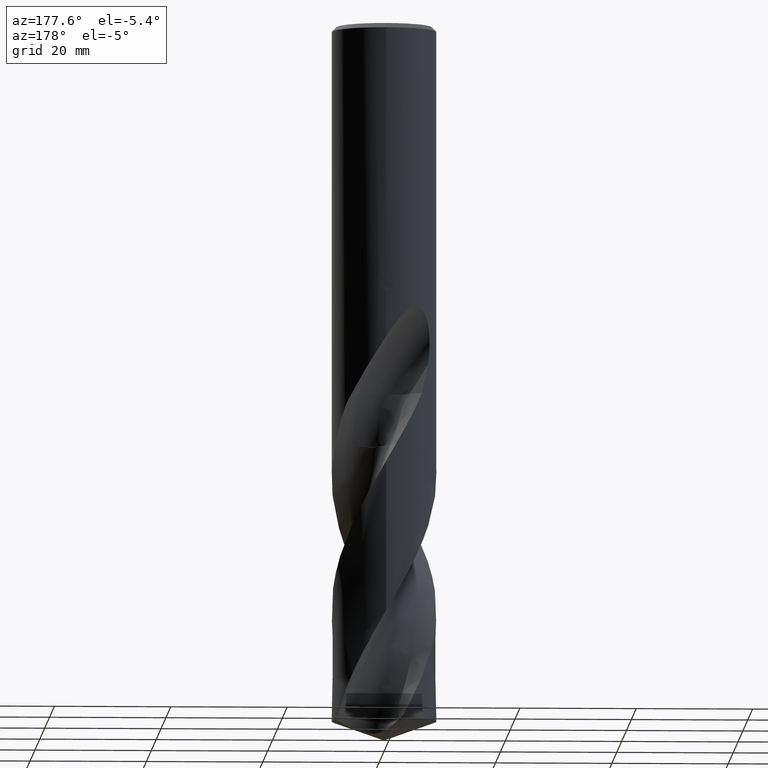
[diagram: clean part render]
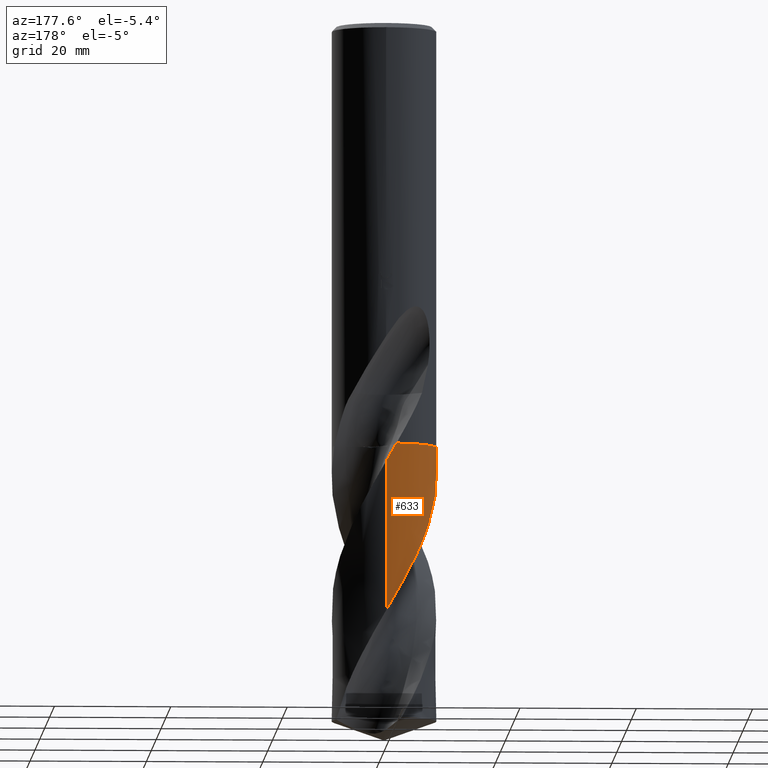
[diagram: same view with one face highlighted and labeled with its STEP entity id]
A machine part, auxiliary view. The second image highlights one B-rep face of the part: STEP entity #633.
In plain terms, the highlighted conical surface has half-angle 0 deg.
Its self-contained STEP definition (entity closure, byte-faithful):
#261=VERTEX_POINT('',#736);
#267=EDGE_CURVE('',#261,#519,#742,.T.);
#367=VERTEX_POINT('',#850);
#393=EDGE_CURVE('',#367,#545,#879,.T.);
#407=VERTEX_POINT('',#895);
#413=VERTEX_POINT('',#901);
#515=EDGE_CURVE('',#413,#367,#1011,.T.);
#519=VERTEX_POINT('',#1015);
#541=EDGE_CURVE('',#519,#413,#1040,.T.);
#545=VERTEX_POINT('',#1044);
#629=EDGE_CURVE('',#407,#261,#1134,.T.);
#633=ADVANCED_FACE('',(#1138),#1139,.T.);
#659=EDGE_CURVE('',#545,#407,#1168,.T.);
#736=CARTESIAN_POINT('',(-1.7776141120921,8.82260099228502,-72.5050000000001));
#742=B_SPLINE_CURVE_WITH_KNOTS('',3,(#1258,#1259,#1260,#1261,#1262,#1263,#1264,#1265,#1266,#1267,#1268,#1269,#1270,#1271,#1272,#1273,#1274,#1275,#1276,#1277,#1278,#1279,#1280,#1281,#1282,#1283,#1284,#1285,#1286,#1287,#1288,#1289,#1290,#1291,#1292,#1293,#1294,#1295,#1296,#1297,#1298,#1299,#1300,#1301,#1302,#1303,#1304,#1305,#1306,#1307,#1308,#1309),.UNSPECIFIED.,.F.,.F.,(4,2,2,2,2,2,2,2,2,2,2,2,2,2,2,2,2,2,2,2,2,2,2,2,2,4),(0.0,1.41544705653889,4.46933983971834,6.13291484086871,7.79328679765323,11.1150139512769,11.3218909070385,14.6362732953079,16.3801027236303,18.1254054756912,21.6227109130525,23.3709591548895,25.1130865872562,26.859027560777,30.3547639594095,31.8683855765479,33.2853282867156,35.9425750654865,38.2700980378896,40.3076010024609,42.090368683687,45.2109040380957,45.7959602723989,47.9907374673563,51.2859009282152,54.579540273064),.UNSPECIFIED.);
#850=CARTESIAN_POINT('',(-8.64142653074174,-2.51474605365439,-72.505));
#879=B_SPLINE_CURVE_WITH_KNOTS('',3,(#3423,#3424,#3425,#3426),.UNSPECIFIED.,.F.,.F.,(4,4),(0.0,0.0191097641142232),.UNSPECIFIED.);
#895=CARTESIAN_POINT('',(-1.78045048752155,8.82202902236692,-72.5));
#901=CARTESIAN_POINT('',(-1.29853358962347E-014,8.99996111550752,-101.36135100112));
#1011=B_SPLINE_CURVE_WITH_KNOTS('',3,(#4970,#4971,#4972,#4973,#4974,#4975,#4976,#4977,#4978,#4979,#4980,#4981,#4982,#4983,#4984,#4985,#4986,#4987,#4988,#4989,#4990,#4991,#4992,#4993,#4994,#4995,#4996,#4997,#4998,#4999,#5000,#5001,#5002,#5003,#5004,#5005,#5006,#5007,#5008,#5009,#5010,#5011,#5012,#5013,#5014,#5015,#5016,#5017,#5018,#5019,#5020,#5021,#5022,#5023,#5024,#5025,#5026,#5027,#5028,#5029,#5030,#5031),.UNSPECIFIED.,.F.,.F.,(4,2,2,2,2,2,2,2,2,2,2,2,2,2,2,2,2,2,2,2,2,2,2,2,2,2,2,2,2,2,4),(0.0,2.53356226960985,3.78901420469953,5.73574751324788,7.88352003773002,8.68770342485946,9.73229587018579,11.8121840639859,15.4667526417185,16.6743231760193,18.5659667039319,21.906437017055,22.0556023164414,24.4340960081216,25.5512084935416,26.9069573839074,28.9338052900889,30.0182710071125,30.9937335319327,34.6005396449741,35.3435565061623,38.8216991774773,39.3125034811369,41.5869746362791,42.7139707860493,44.1922404981507,46.784272524436,48.7252854693923,51.6437122800019,53.100299016907,54.5582214193999),.UNSPECIFIED.);
#1015=CARTESIAN_POINT('',(9.71487914867305E-014,8.99990656492071,-75.6002357198777));
#1040=LINE('',#5134,#5135);
#1044=CARTESIAN_POINT('',(-8.64062220915624,-2.51750826188037,-72.5));
#1134=B_SPLINE_CURVE_WITH_KNOTS('',3,(#5789,#5790,#5791,#5792),.UNSPECIFIED.,.F.,.F.,(4,4),(0.0,0.0146499971479809),.UNSPECIFIED.);
#1138=FACE_OUTER_BOUND('',#5796,.T.);
#1139=CONICAL_SURFACE('',#5797,8.99995,2.11755532619694E-006);
#1168=CIRCLE('',#6521,8.9999);
#1258=CARTESIAN_POINT('',(-1.779308420766,8.82225944021874,-72.5020132818789));
#1259=CARTESIAN_POINT('',(-1.54765352377243,8.86898140461853,-72.9103796710903));
#1260=CARTESIAN_POINT('',(-1.3144031945342,8.90652999618678,-73.3190896438256));
#1261=CARTESIAN_POINT('',(-0.574574542363455,8.99596762331083,-74.6087549151846));
#1262=CARTESIAN_POINT('',(-0.0645324138519433,9.0140971771525,-75.4881078861449));
#1263=CARTESIAN_POINT('',(0.72186677402644,8.97520846099296,-76.8488676571987));
#1264=CARTESIAN_POINT('',(0.998387681048052,8.94866952150765,-77.3283832224658));
#1265=CARTESIAN_POINT('',(1.54754026265831,8.87019296949633,-78.2872533280572));
#1266=CARTESIAN_POINT('',(1.819835079433,8.81835343784614,-78.7659914246238));
#1267=CARTESIAN_POINT('',(2.62823748026009,8.62542265990244,-80.2034037056807));
#1268=CARTESIAN_POINT('',(3.15434053659256,8.4472506397823,-81.1597695637625));
#1269=CARTESIAN_POINT('',(3.69236331383252,8.20769238527123,-82.1776507966773));
#1270=CARTESIAN_POINT('',(3.72382357012173,8.19346698991409,-82.2373236989842));
#1271=CARTESIAN_POINT('',(4.25791473055328,7.94825536157864,-83.2531646233988));
#1272=CARTESIAN_POINT('',(4.73829966160849,7.67158113919067,-84.2081376033734));
#1273=CARTESIAN_POINT('',(5.42798784952482,7.18473077153969,-85.6674650800102));
#1274=CARTESIAN_POINT('',(5.65744283023986,7.00547811399587,-86.1701185253055));
#1275=CARTESIAN_POINT('',(6.09831665451156,6.62526214242639,-87.176867698645));
#1276=CARTESIAN_POINT('',(6.30950274875878,6.42446759250434,-87.6802573565694));
#1277=CARTESIAN_POINT('',(6.91354801977334,5.7915727184061,-89.1928901164504));
#1278=CARTESIAN_POINT('',(7.27445658192909,5.33119954506998,-90.1992139426939));
#1279=CARTESIAN_POINT('',(7.74507842352787,4.59323266120488,-91.7127543023543));
#1280=CARTESIAN_POINT('',(7.88990218419708,4.33976294936221,-92.2168700040861));
#1281=CARTESIAN_POINT('',(8.15398650985441,3.82047721303811,-93.2238683668743));
#1282=CARTESIAN_POINT('',(8.27313701221482,3.55509677667946,-93.7260909131969));
#1283=CARTESIAN_POINT('',(8.48554033393503,3.01322469557666,-94.7325491761387));
#1284=CARTESIAN_POINT('',(8.5786360910774,2.73696398605384,-95.236108967157));
#1285=CARTESIAN_POINT('',(8.81742244153444,1.89540117632291,-96.7484740081232));
#1286=CARTESIAN_POINT('',(8.92171093580741,1.32003349636677,-97.7544910176199));
#1287=CARTESIAN_POINT('',(8.99032058473607,0.486974572877782,-99.1998976430063));
#1288=CARTESIAN_POINT('',(9.00044932886943,0.234462548602008,-99.6364266200459));
#1289=CARTESIAN_POINT('',(8.99946326887928,-0.254677793596463,-100.481935775586));
#1290=CARTESIAN_POINT('',(8.98966482658872,-0.491036705420449,-100.890445335103));
#1291=CARTESIAN_POINT('',(8.93476992925717,-1.16869066482586,-102.066029007963));
#1292=CARTESIAN_POINT('',(8.86634682005111,-1.60746998396216,-102.832020951937));
#1293=CARTESIAN_POINT('',(8.67781190582404,-2.41783218232199,-104.270278585295));
#1294=CARTESIAN_POINT('',(8.56538496353753,-2.79006387098216,-104.940972154402));
#1295=CARTESIAN_POINT('',(8.31014913241291,-3.47224664876923,-106.200542114201));
#1296=CARTESIAN_POINT('',(8.17304323306751,-3.78371991572084,-106.788048208457));
#1297=CARTESIAN_POINT('',(7.88348962756721,-4.35186071267742,-107.890309532638));
#1298=CARTESIAN_POINT('',(7.73532183015809,-4.6100833108132,-108.404179006098));
#1299=CARTESIAN_POINT('',(7.29343814333301,-5.29873045917809,-109.819093913882));
#1300=CARTESIAN_POINT('',(6.97465733659186,-5.71184404194297,-110.718091211442));
#1301=CARTESIAN_POINT('',(6.55573611902439,-6.16697329693645,-111.787283860742));
#1302=CARTESIAN_POINT('',(6.48843471554889,-6.23774439280843,-111.956058526709));
#1303=CARTESIAN_POINT('',(6.16325941672808,-6.5687267656382,-112.758190152383));
#1304=CARTESIAN_POINT('',(5.89080136456107,-6.81413414060767,-113.391193773051));
#1305=CARTESIAN_POINT('',(5.17378056156418,-7.38473613493486,-114.975368675769));
#1306=CARTESIAN_POINT('',(4.71302214887521,-7.68697080166072,-115.923546334778));
#1307=CARTESIAN_POINT('',(3.74257823373152,-8.20335291190132,-117.82511643759));
#1308=CARTESIAN_POINT('',(3.23462449655722,-8.41663108637968,-118.773993618851));
#1309=CARTESIAN_POINT('',(2.71014463513415,-8.58225588389523,-119.724267891604));
#3423=CARTESIAN_POINT('',(-8.64328320166188,-2.50835725868755,-72.516563856723));
#3424=CARTESIAN_POINT('',(-8.64239787591892,-2.51140786715645,-72.5110424543127));
#3425=CARTESIAN_POINT('',(-8.64151087853308,-2.51445820192654,-72.5055211681911));
#3426=CARTESIAN_POINT('',(-8.64062220915622,-2.51750826188039,-72.5));
#4970=CARTESIAN_POINT('',(8.32250476081224,3.42577210366627,-119.724267891604));
#4971=CARTESIAN_POINT('',(8.16176315609466,3.81627059328311,-118.992907259398));
#4972=CARTESIAN_POINT('',(7.9734894331994,4.19556711586454,-118.264540476028));
#4973=CARTESIAN_POINT('',(7.65252014653159,4.74161183684306,-117.171771990478));
#4974=CARTESIAN_POINT('',(7.53994259550827,4.91864670273495,-116.809958467722));
#4975=CARTESIAN_POINT('',(7.23750547783702,5.35947729429919,-115.886036553932));
#4976=CARTESIAN_POINT('',(7.03946526684127,5.61704179118466,-115.322953373382));
#4977=CARTESIAN_POINT('',(6.59461366957446,6.13507523084241,-114.141696690008));
#4978=CARTESIAN_POINT('',(6.34517235762831,6.3927329908121,-113.523703520935));
#4979=CARTESIAN_POINT('',(5.98197652052267,6.72560041424402,-112.672335824692));
#4980=CARTESIAN_POINT('',(5.88106668809036,6.81401157200649,-112.440451932282));
#4981=CARTESIAN_POINT('',(5.64474746287942,7.01190841639607,-111.907071760979));
#4982=CARTESIAN_POINT('',(5.50797909435678,7.11984804481317,-111.605269971654));
#4983=CARTESIAN_POINT('',(5.08952686306658,7.43080149063299,-110.703569427999));
#4984=CARTESIAN_POINT('',(4.79910971081116,7.62160396920245,-110.104813564462));
#4985=CARTESIAN_POINT('',(3.9695726635372,8.10028469668248,-108.450515733775));
#4986=CARTESIAN_POINT('',(3.41134020215715,8.35073822720649,-107.39540884584));
#4987=CARTESIAN_POINT('',(2.64054744576727,8.60625706801341,-105.992932124867));
#4988=CARTESIAN_POINT('',(2.4470897364704,8.6632465647354,-105.644862327678));
#4989=CARTESIAN_POINT('',(1.94624704316803,8.79268120569752,-104.750723367795));
#4990=CARTESIAN_POINT('',(1.63677388280803,8.85550696857668,-104.203975515491));
#4991=CARTESIAN_POINT('',(0.773268966431278,8.98399003096975,-102.694519097094));
#4992=CARTESIAN_POINT('',(0.215928384099625,9.01456568900529,-101.736525213475));
#4993=CARTESIAN_POINT('',(-0.365018221883866,8.99258890618818,-100.729380049128));
#4994=CARTESIAN_POINT('',(-0.38984513867323,8.9915468387813,-100.686325822476));
#4995=CARTESIAN_POINT('',(-0.811140619205548,8.97211186723868,-99.9558227267251));
#4996=CARTESIAN_POINT('',(-1.20631640688483,8.92760679485736,-99.2706757810518));
#4997=CARTESIAN_POINT('',(-1.7814789605454,8.82385400410558,-98.2612255475533));
#4998=CARTESIAN_POINT('',(-1.96411779428389,8.78499999973398,-97.9388069025751));
#4999=CARTESIAN_POINT('',(-2.36524035120878,8.68654460214721,-97.224460931015));
#5000=CARTESIAN_POINT('',(-2.58290541483799,8.62432465436719,-96.8322326955946));
#5001=CARTESIAN_POINT('',(-3.11973687899221,8.44872028534595,-95.8551397345737));
#5002=CARTESIAN_POINT('',(-3.43537782944092,8.3253849603316,-95.2710564247707));
#5003=CARTESIAN_POINT('',(-3.90833252071229,8.10905863120638,-94.3726964720353));
#5004=CARTESIAN_POINT('',(-4.07076771456513,8.02873920369943,-94.0597184448976));
#5005=CARTESIAN_POINT('',(-4.37431552414183,7.8670760320754,-93.4646934147694));
#5006=CARTESIAN_POINT('',(-4.51585734152494,7.78668901419198,-93.1826262829411));
#5007=CARTESIAN_POINT('',(-5.17037832221745,7.39110923766195,-91.8591451729476));
#5008=CARTESIAN_POINT('',(-5.65285065315223,7.02895066919044,-90.8248475494554));
#5009=CARTESIAN_POINT('',(-6.18667491520602,6.53752745566373,-89.5685394499079));
#5010=CARTESIAN_POINT('',(-6.27612190313171,6.45170861861479,-89.3537787749003));
#5011=CARTESIAN_POINT('',(-6.77476388838732,5.95306632988123,-88.1335768932747));
#5012=CARTESIAN_POINT('',(-7.14475803721784,5.50349908635338,-87.1348673848176));
#5013=CARTESIAN_POINT('',(-7.5145328602705,4.95350650065715,-85.987615975794));
#5014=CARTESIAN_POINT('',(-7.55929470181297,4.8849237604971,-85.8457025099191));
#5015=CARTESIAN_POINT('',(-7.80620692188992,4.49509359521068,-85.0466841053794));
#5016=CARTESIAN_POINT('',(-7.98898318147894,4.16165518813081,-84.3914427695189));
#5017=CARTESIAN_POINT('',(-8.23016586247569,3.64670824274058,-83.4092712186062));
#5018=CARTESIAN_POINT('',(-8.30465667615563,3.47371570385364,-83.0840319224438));
#5019=CARTESIAN_POINT('',(-8.46411285931607,3.06892639806171,-82.3314971561108));
#5020=CARTESIAN_POINT('',(-8.54507167795108,2.83571357021161,-81.9037710599888));
#5021=CARTESIAN_POINT('',(-8.74141827148578,2.18484563831829,-80.7279981946973));
#5022=CARTESIAN_POINT('',(-8.836404506873,1.76182010333715,-79.9821103191824));
#5023=CARTESIAN_POINT('',(-8.94862630064974,1.01277039808801,-78.6729581452542));
#5024=CARTESIAN_POINT('',(-8.97929026908815,0.689828480817827,-78.1114535312485));
#5025=CARTESIAN_POINT('',(-9.01228549805852,-0.121144775461839,-76.7080309080443));
#5026=CARTESIAN_POINT('',(-8.99250544766332,-0.60906334454836,-75.8682640093403));
#5027=CARTESIAN_POINT('',(-8.90371820991169,-1.33465893469245,-74.6053244446701));
#5028=CARTESIAN_POINT('',(-8.86440430502716,-1.57463558916387,-74.185194749675));
#5029=CARTESIAN_POINT('',(-8.76663485544657,-2.05020246949987,-73.3431682378911));
#5030=CARTESIAN_POINT('',(-8.70861350687514,-2.2838983827046,-72.9228608109019));
#5031=CARTESIAN_POINT('',(-8.64135673291403,-2.51498588436446,-72.5045658796388));
#5134=CARTESIAN_POINT('',(-1.10167467965388E-015,8.99995,-96.1121339458021));
#5135=VECTOR('',#8411,1.0);
#5789=CARTESIAN_POINT('',(-1.7804504875216,8.82202902236694,-72.5));
#5790=CARTESIAN_POINT('',(-1.77805289336321,8.82251291084967,-72.5042266215051));
#5791=CARTESIAN_POINT('',(-1.77565513032991,8.82299581619853,-72.5084532591397));
#5792=CARTESIAN_POINT('',(-1.77325719913524,8.82347773834202,-72.5126799138471));
#5796=EDGE_LOOP('',(#8483,#8484,#8485,#8486,#8487,#8488));
#5797=AXIS2_PLACEMENT_3D('',#8489,#8490,#8491);
#6521=AXIS2_PLACEMENT_3D('',#8532,#8533,#8534);
#8411=DIRECTION('',(-2.59317170702925E-022,2.11755532619536E-006,-0.999999999997758));
#8483=ORIENTED_EDGE('',*,*,#541,.T.);
#8484=ORIENTED_EDGE('',*,*,#515,.T.);
#8485=ORIENTED_EDGE('',*,*,#393,.T.);
#8486=ORIENTED_EDGE('',*,*,#659,.T.);
#8487=ORIENTED_EDGE('',*,*,#629,.T.);
#8488=ORIENTED_EDGE('',*,*,#267,.T.);
#8489=CARTESIAN_POINT('',(0.0,0.0,-96.1121339458021));
#8490=DIRECTION('',(0.0,-0.0,-1.0));
#8491=DIRECTION('',(0.0,1.0,0.0));
#8532=CARTESIAN_POINT('',(0.0,0.0,-72.5));
#8533=DIRECTION('',(0.0,0.0,-1.0));
#8534=DIRECTION('',(0.0,1.0,0.0));